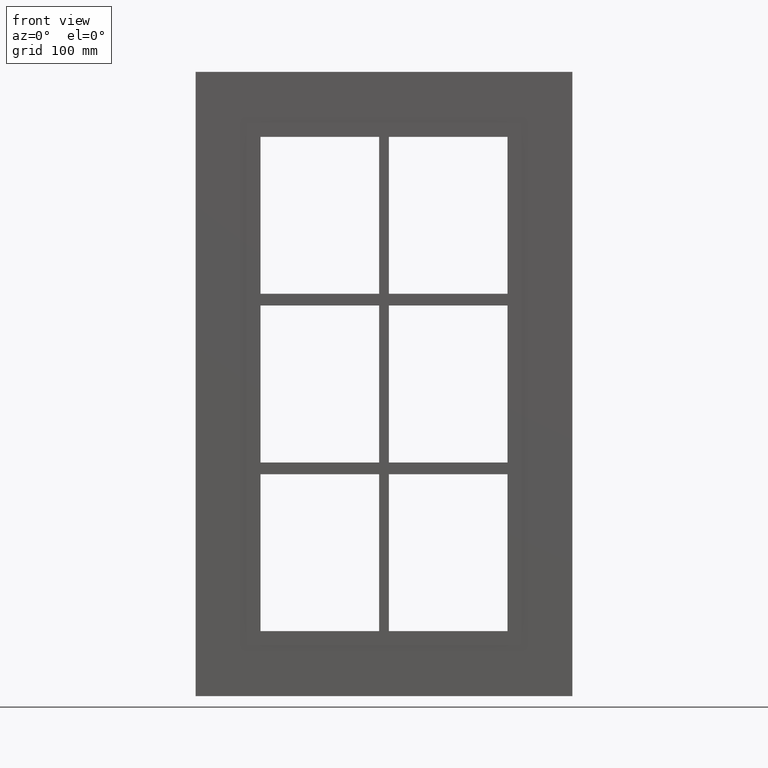
[diagram: clean part render]
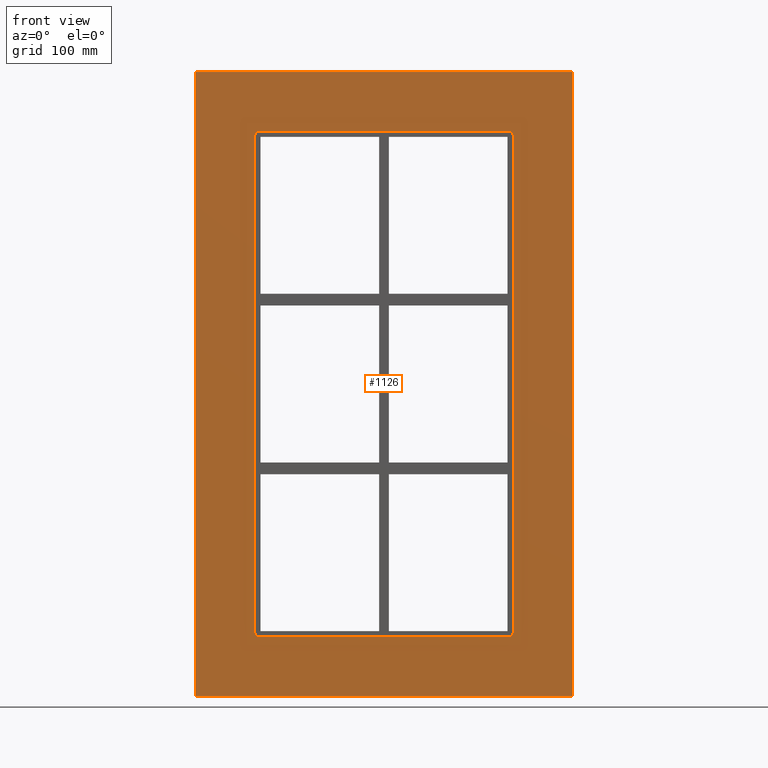
[diagram: same view with one face highlighted and labeled with its STEP entity id]
A machine part, front view. The second image highlights one B-rep face of the part: STEP entity #1126.
In plain terms, the highlighted planar face has unit normal (0, 1, 0).
Its self-contained STEP definition (entity closure, byte-faithful):
#1017=CARTESIAN_POINT('',(-1.675973E-014,0.0,3.621673E-014));
#1018=DIRECTION('',(0.0,1.0,0.0));
#1019=DIRECTION('',(0.0,0.0,1.0));
#1020=AXIS2_PLACEMENT_3D('',#1017,#1018,#1019);
#1021=PLANE('',#1020);
#1022=CARTESIAN_POINT('',(-191.50000000000003,0.0,317.25));
#1023=VERTEX_POINT('',#1022);
#1024=CARTESIAN_POINT('',(191.5,0.0,317.25));
#1025=VERTEX_POINT('',#1024);
#1026=CARTESIAN_POINT('',(-191.50000000000003,0.0,317.25));
#1027=DIRECTION('',(1.0,0.0,0.0));
#1028=VECTOR('',#1027,383.0);
#1029=LINE('',#1026,#1028);
#1030=EDGE_CURVE('',#1023,#1025,#1029,.T.);
#1031=ORIENTED_EDGE('',*,*,#1030,.F.);
#1032=CARTESIAN_POINT('',(-191.50000000000003,0.0,-317.24999999999994));
#1033=VERTEX_POINT('',#1032);
#1034=CARTESIAN_POINT('',(-191.50000000000003,0.0,-317.24999999999994));
#1035=DIRECTION('',(0.0,0.0,1.0));
#1036=VECTOR('',#1035,634.5);
#1037=LINE('',#1034,#1036);
#1038=EDGE_CURVE('',#1033,#1023,#1037,.T.);
#1039=ORIENTED_EDGE('',*,*,#1038,.F.);
#1040=CARTESIAN_POINT('',(191.5,0.0,-317.24999999999994));
#1041=VERTEX_POINT('',#1040);
#1042=CARTESIAN_POINT('',(191.5,0.0,-317.24999999999994));
#1043=DIRECTION('',(-1.0,0.0,0.0));
#1044=VECTOR('',#1043,383.0);
#1045=LINE('',#1042,#1044);
#1046=EDGE_CURVE('',#1041,#1033,#1045,.T.);
#1047=ORIENTED_EDGE('',*,*,#1046,.F.);
#1048=CARTESIAN_POINT('',(191.5,0.0,317.25));
#1049=DIRECTION('',(0.0,0.0,-1.0));
#1050=VECTOR('',#1049,634.5);
#1051=LINE('',#1048,#1050);
#1052=EDGE_CURVE('',#1025,#1041,#1051,.T.);
#1053=ORIENTED_EDGE('',*,*,#1052,.F.);
#1054=EDGE_LOOP('',(#1031,#1039,#1047,#1053));
#1055=FACE_OUTER_BOUND('',#1054,.T.);
#1056=CARTESIAN_POINT('',(-131.5,0.0,-251.25));
#1057=VERTEX_POINT('',#1056);
#1058=CARTESIAN_POINT('',(-125.5,0.0,-257.25));
#1059=VERTEX_POINT('',#1058);
#1060=CARTESIAN_POINT('',(-125.5,0.0,-251.25));
#1061=DIRECTION('',(0.0,-1.0,0.0));
#1062=DIRECTION('',(-0.707106781186545,0.0,-0.70710678118655));
#1063=AXIS2_PLACEMENT_3D('',#1060,#1061,#1062);
#1064=CIRCLE('',#1063,6.000000000000001);
#1065=EDGE_CURVE('',#1057,#1059,#1064,.T.);
#1066=ORIENTED_EDGE('',*,*,#1065,.F.);
#1067=CARTESIAN_POINT('',(-131.5,0.0,251.25));
#1068=VERTEX_POINT('',#1067);
#1069=CARTESIAN_POINT('',(-131.5,0.0,251.25));
#1070=DIRECTION('',(0.0,0.0,-1.0));
#1071=VECTOR('',#1070,502.5);
#1072=LINE('',#1069,#1071);
#1073=EDGE_CURVE('',#1068,#1057,#1072,.T.);
#1074=ORIENTED_EDGE('',*,*,#1073,.F.);
#1075=CARTESIAN_POINT('',(-125.49999999999997,0.0,257.25));
#1076=VERTEX_POINT('',#1075);
#1077=CARTESIAN_POINT('',(-125.49999999999997,0.0,251.25));
#1078=DIRECTION('',(0.0,-1.0,0.0));
#1079=DIRECTION('',(-0.707106781186548,0.0,0.707106781186548));
#1080=AXIS2_PLACEMENT_3D('',#1077,#1078,#1079);
#1081=CIRCLE('',#1080,6.000000000000002);
#1082=EDGE_CURVE('',#1076,#1068,#1081,.T.);
#1083=ORIENTED_EDGE('',*,*,#1082,.F.);
#1084=CARTESIAN_POINT('',(125.50000000000004,0.0,257.25));
#1085=VERTEX_POINT('',#1084);
#1086=CARTESIAN_POINT('',(125.50000000000003,0.0,257.25));
#1087=DIRECTION('',(-1.0,0.0,0.0));
#1088=VECTOR('',#1087,251.0);
#1089=LINE('',#1086,#1088);
#1090=EDGE_CURVE('',#1085,#1076,#1089,.T.);
#1091=ORIENTED_EDGE('',*,*,#1090,.F.);
#1092=CARTESIAN_POINT('',(131.50000000000003,0.0,251.25));
#1093=VERTEX_POINT('',#1092);
#1094=CARTESIAN_POINT('',(125.50000000000004,0.0,251.25));
#1095=DIRECTION('',(0.0,-1.0,0.0));
#1096=DIRECTION('',(0.707106781186545,0.0,0.70710678118655));
#1097=AXIS2_PLACEMENT_3D('',#1094,#1095,#1096);
#1098=CIRCLE('',#1097,6.000000000000001);
#1099=EDGE_CURVE('',#1093,#1085,#1098,.T.);
#1100=ORIENTED_EDGE('',*,*,#1099,.F.);
#1101=CARTESIAN_POINT('',(131.50000000000003,0.0,-251.25));
#1102=VERTEX_POINT('',#1101);
#1103=CARTESIAN_POINT('',(131.50000000000003,0.0,-251.25000000000003));
#1104=DIRECTION('',(0.0,0.0,1.0));
#1105=VECTOR('',#1104,502.5);
#1106=LINE('',#1103,#1105);
#1107=EDGE_CURVE('',#1102,#1093,#1106,.T.);
#1108=ORIENTED_EDGE('',*,*,#1107,.F.);
#1109=CARTESIAN_POINT('',(125.5,0.0,-257.25));
#1110=VERTEX_POINT('',#1109);
#1111=CARTESIAN_POINT('',(125.5,0.0,-251.25));
#1112=DIRECTION('',(0.0,-1.0,0.0));
#1113=DIRECTION('',(0.707106781186548,0.0,-0.707106781186548));
#1114=AXIS2_PLACEMENT_3D('',#1111,#1112,#1113);
#1115=CIRCLE('',#1114,6.000000000000002);
#1116=EDGE_CURVE('',#1110,#1102,#1115,.T.);
#1117=ORIENTED_EDGE('',*,*,#1116,.F.);
#1118=CARTESIAN_POINT('',(-125.5,0.0,-257.25));
#1119=DIRECTION('',(1.0,0.0,0.0));
#1120=VECTOR('',#1119,251.0);
#1121=LINE('',#1118,#1120);
#1122=EDGE_CURVE('',#1059,#1110,#1121,.T.);
#1123=ORIENTED_EDGE('',*,*,#1122,.F.);
#1124=EDGE_LOOP('',(#1066,#1074,#1083,#1091,#1100,#1108,#1117,#1123));
#1125=FACE_BOUND('',#1124,.T.);
#1126=ADVANCED_FACE('',(#1055,#1125),#1021,.F.);